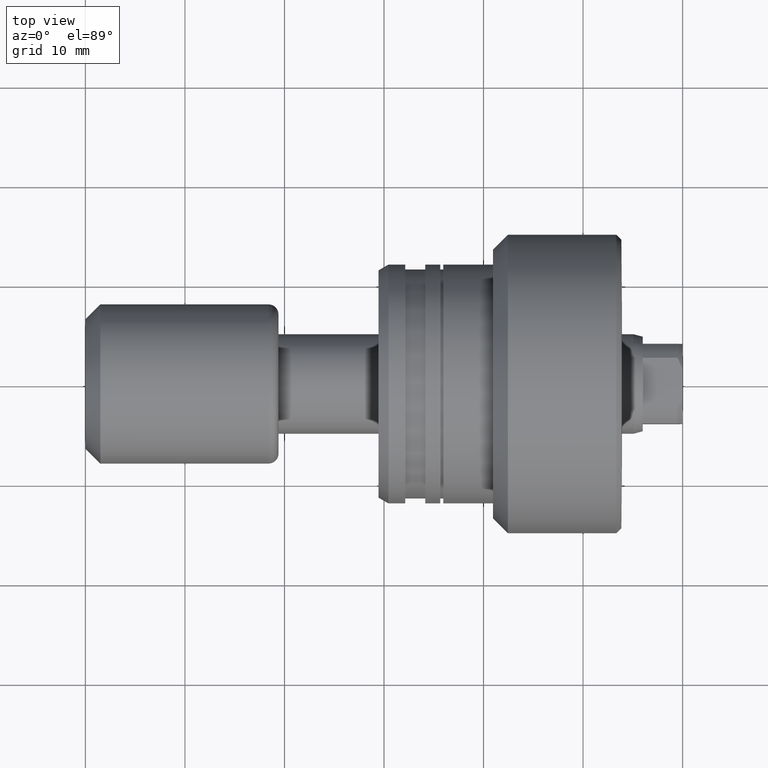
[diagram: clean part render]
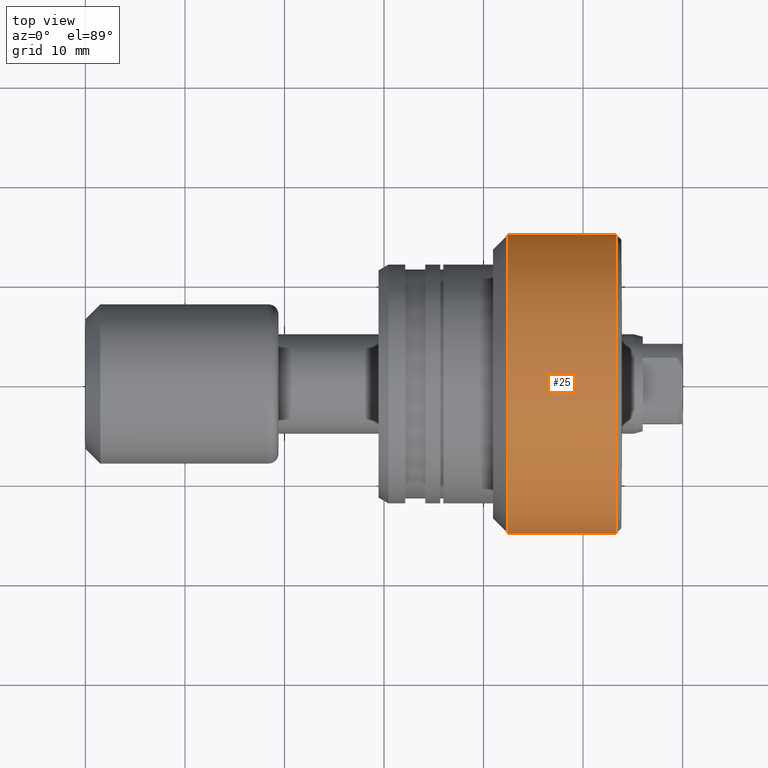
[diagram: same view with one face highlighted and labeled with its STEP entity id]
A machine part, top view. The second image highlights one B-rep face of the part: STEP entity #25.
In plain terms, the highlighted cylindrical surface (partial cylindrical patch) has radius 15 mm, axis along (-1, 0, 0).
Its self-contained STEP definition (entity closure, byte-faithful):
#7 = VERTEX_POINT ( 'NONE', #1391 ) ;
#25 = ADVANCED_FACE ( 'NONE', ( #2254 ), #769, .T. ) ;
#324 = DIRECTION ( 'NONE',  ( -1.000000000000000000, 6.415603269213350828E-16, -0.000000000000000000 ) ) ;
#330 = EDGE_CURVE ( 'NONE', #1345, #7, #1608, .T. ) ;
#338 = DIRECTION ( 'NONE',  ( -6.938893903907233308E-16, -1.000000000000000000, 0.000000000000000000 ) ) ;
#365 = CIRCLE ( 'NONE', #767, 14.99999999999998224 ) ;
#400 = ORIENTED_EDGE ( 'NONE', *, *, #330, .F. ) ;
#505 = ORIENTED_EDGE ( 'NONE', *, *, #1492, .T. ) ;
#547 = CARTESIAN_POINT ( 'NONE',  ( -0.6000000000006902034, -1.904152510938211848E-14, 0.000000000000000000 ) ) ;
#665 = CARTESIAN_POINT ( 'NONE',  ( -30.28002276692731343, 14.99999999999998579, 1.836970198721028011E-15 ) ) ;
#767 = AXIS2_PLACEMENT_3D ( 'NONE', #547, #2433, #965 ) ;
#769 = CYLINDRICAL_SURFACE ( 'NONE', #1794, 14.99999999999998579 ) ;
#786 = VERTEX_POINT ( 'NONE', #1738 ) ;
#808 = CARTESIAN_POINT ( 'NONE',  ( -0.6000000000006998624, -15.00000000000000178, 0.000000000000000000 ) ) ;
#899 = DIRECTION ( 'NONE',  ( -1.000000000000000000, 6.415603269213350828E-16, -0.000000000000000000 ) ) ;
#965 = DIRECTION ( 'NONE',  ( -6.432932890080667202E-16, -1.000000000000000000, 0.000000000000000000 ) ) ;
#978 = VECTOR ( 'NONE', #324, 1000.000000000000000 ) ;
#1036 = CARTESIAN_POINT ( 'NONE',  ( -30.28002276692733474, -14.99999999999998579, 0.000000000000000000 ) ) ;
#1059 = CIRCLE ( 'NONE', #1994, 14.99999999999998934 ) ;
#1216 = DIRECTION ( 'NONE',  ( -1.000000000000000000, 6.415603269213350828E-16, -0.000000000000000000 ) ) ;
#1225 = ORIENTED_EDGE ( 'NONE', *, *, #1762, .T. ) ;
#1230 = ORIENTED_EDGE ( 'NONE', *, *, #1529, .F. ) ;
#1270 = LINE ( 'NONE', #665, #978 ) ;
#1338 = EDGE_LOOP ( 'NONE', ( #1225, #505, #1230, #400 ) ) ;
#1345 = VERTEX_POINT ( 'NONE', #808 ) ;
#1391 = CARTESIAN_POINT ( 'NONE',  ( -11.50000000000069100, -15.00000000000000178, 1.836970198721028406E-15 ) ) ;
#1451 = CARTESIAN_POINT ( 'NONE',  ( -11.50000000000068034, -1.204851754593957361E-14, 0.000000000000000000 ) ) ;
#1492 = EDGE_CURVE ( 'NONE', #1853, #786, #1270, .T. ) ;
#1529 = EDGE_CURVE ( 'NONE', #7, #786, #1059, .T. ) ;
#1584 = CARTESIAN_POINT ( 'NONE',  ( -0.6000000000006806555, 14.99999999999996270, 1.836970198721027617E-15 ) ) ;
#1608 = LINE ( 'NONE', #1036, #2163 ) ;
#1738 = CARTESIAN_POINT ( 'NONE',  ( -11.50000000000066969, 14.99999999999997691, 0.000000000000000000 ) ) ;
#1762 = EDGE_CURVE ( 'NONE', #1345, #1853, #365, .T. ) ;
#1794 = AXIS2_PLACEMENT_3D ( 'NONE', #1871, #1912, #2069 ) ;
#1853 = VERTEX_POINT ( 'NONE', #1584 ) ;
#1871 = CARTESIAN_POINT ( 'NONE',  ( -30.28002276692732408, 0.000000000000000000, 0.000000000000000000 ) ) ;
#1912 = DIRECTION ( 'NONE',  ( -1.000000000000000000, 6.415603269213350828E-16, -0.000000000000000000 ) ) ;
#1994 = AXIS2_PLACEMENT_3D ( 'NONE', #1451, #899, #338 ) ;
#2069 = DIRECTION ( 'NONE',  ( -6.938893903907235280E-16, -1.000000000000000000, 0.000000000000000000 ) ) ;
#2163 = VECTOR ( 'NONE', #1216, 1000.000000000000000 ) ;
#2254 = FACE_OUTER_BOUND ( 'NONE', #1338, .T. ) ;
#2433 = DIRECTION ( 'NONE',  ( -1.000000000000000000, 6.415603269213350828E-16, -0.000000000000000000 ) ) ;